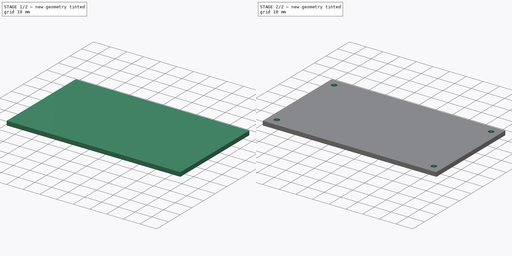
[diagram: build sequence overview — one tinted view per stage of 2, left to right]
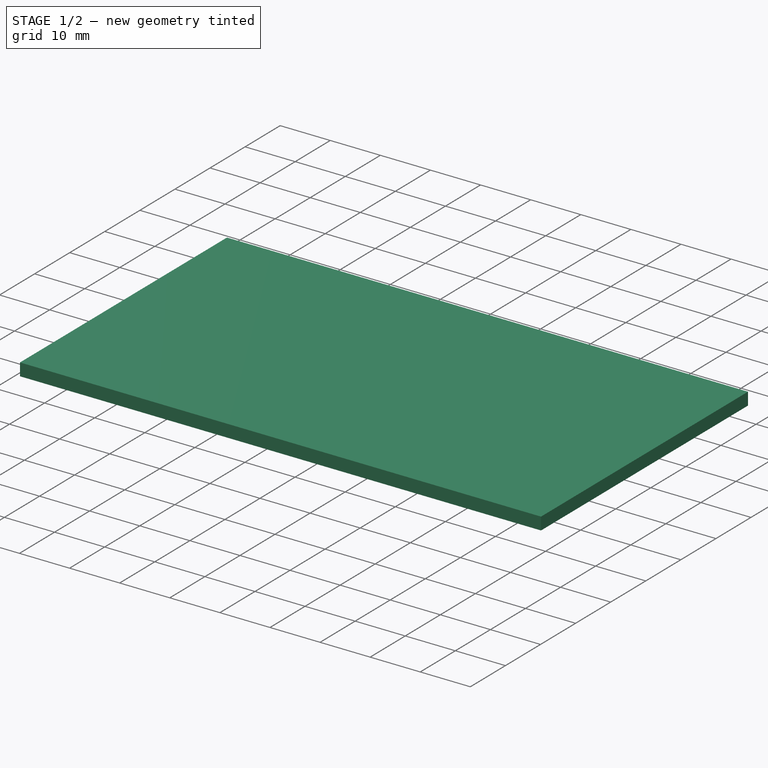
[diagram: stage 1 of 2 — iso view after this stage's code; geometry added in this stage tinted green]
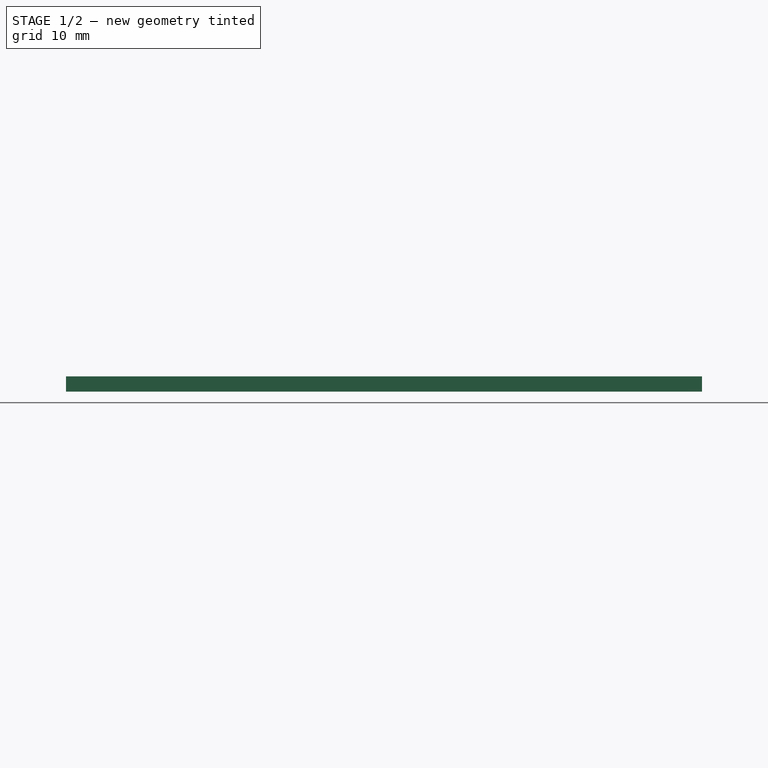
[diagram: stage 1 of 2 — front view after this stage's code; geometry added in this stage tinted green]
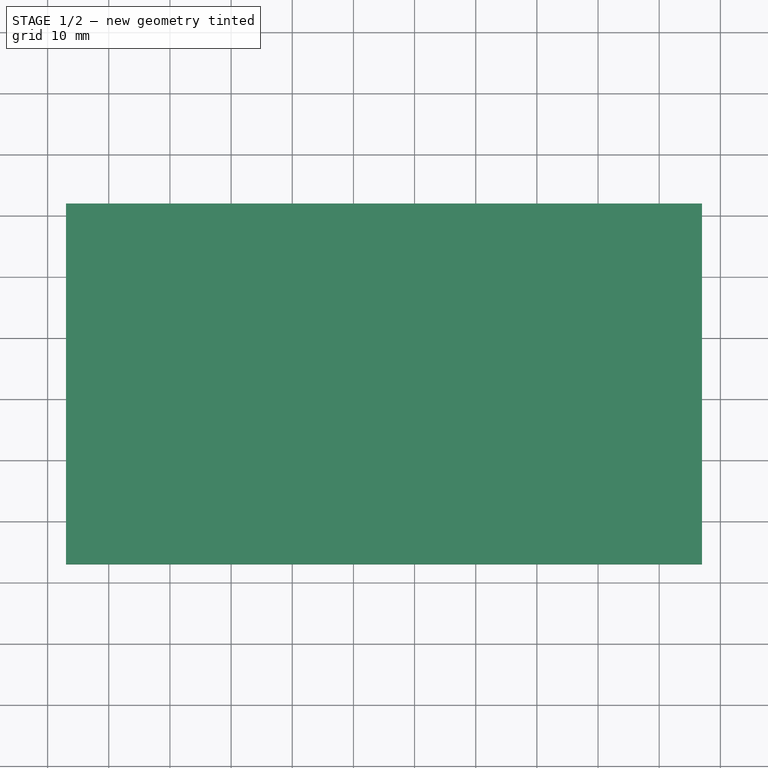
[diagram: stage 1 of 2 — top view after this stage's code; geometry added in this stage tinted green]
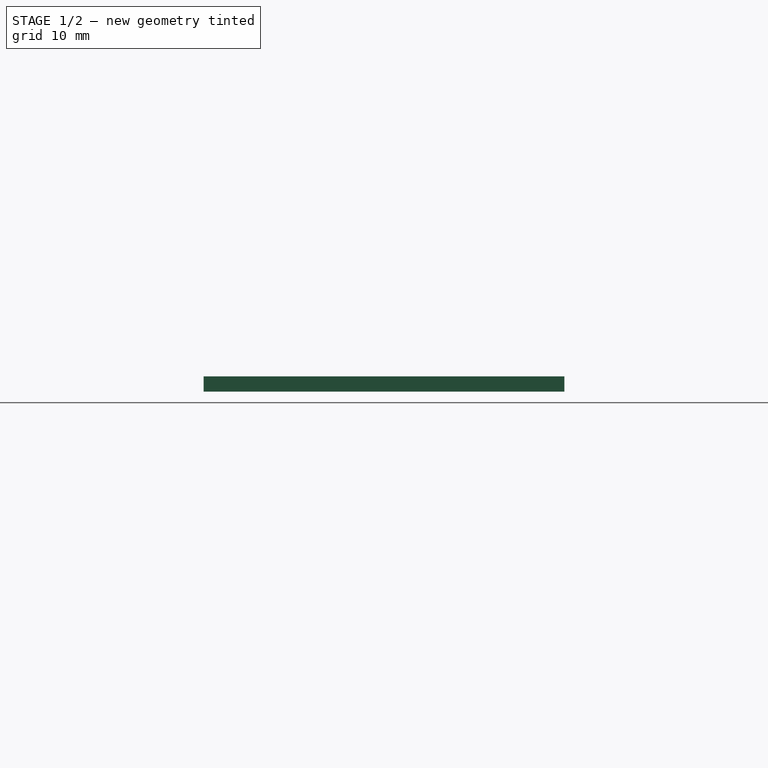
[diagram: stage 1 of 2 — right view after this stage's code; geometry added in this stage tinted green]
FCSTD DOCUMENT  (FreeCAD 0.15R4671 (Git))
Label: insideCover
License: All rights reserved
LicenseURL: http://en.wikipedia.org/wiki/All_rights_reserved
objects: Sketcher::SketchObject×2, PartDesign::Pad×1, PartDesign::Pocket×1
note: 6 computed .brp shape members not serialized (recipe doc carries the construction recipe); baked Part::Feature solids carry a one-line shape summary decoded from their .brp

FEATURE [Sketcher::SketchObject] Sketch002  label="intérieur"
  Placement = pos=(0,0,35) rot=(0,0,1;0rad)
  sketch-geometry (4):
    g0: LineSegment StartX=3 StartY=62 StartZ=0 EndX=107 EndY=62 EndZ=0
    g1: LineSegment StartX=107 StartY=62 StartZ=0 EndX=107 EndY=3 EndZ=0
    g2: LineSegment StartX=107 StartY=3 StartZ=0 EndX=3 EndY=3 EndZ=0
    g3: LineSegment StartX=3 StartY=3 StartZ=0 EndX=3 EndY=62 EndZ=0
  constraints (14):
    c: Coincident(g0,g1)
    c: Coincident(g1,g2)
    c: Coincident(g2,g3)
    c: Coincident(g3,g0)
    c: Horizontal(g0)
    c: Horizontal(g2)
    c: Vertical(g1)
    c: Vertical(g3)
    c: Equal(g0,g2)
    c: Equal(g3,g1)
    c: DistanceX(g-1,g2) = 3
    c: DistanceY(g-1,g2) = 3
    c: Distance(g3) = 59
    c: Distance(g0) = 104
FEATURE [PartDesign::Pad] Pad
  Length = 2.5
  Length2 = 100
  Placement = pos=(0,0,35) rot=(0,0,1;0rad)
  Sketch = -> Sketch002
  Type = 0
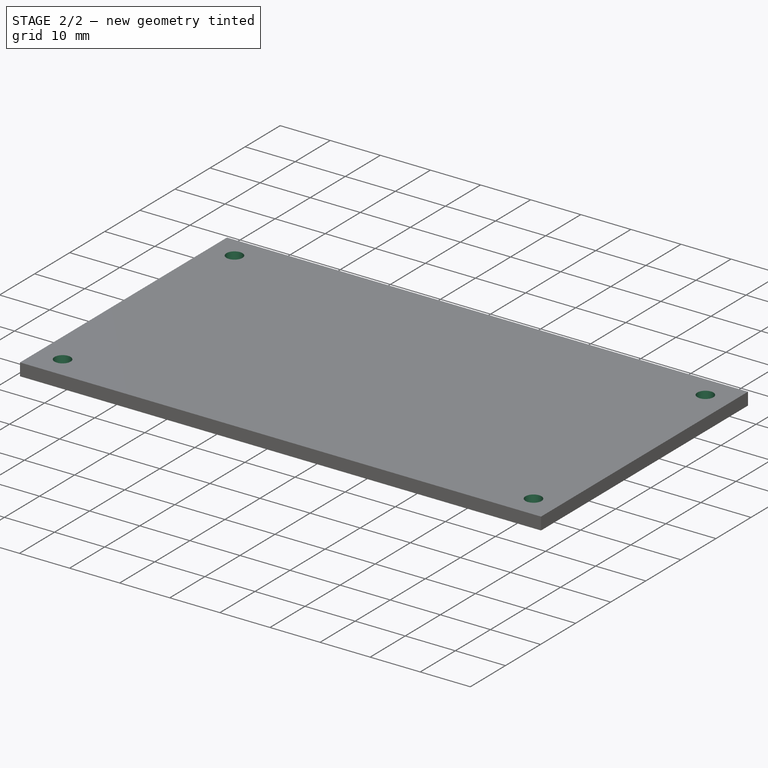
[diagram: stage 2 of 2 — iso view after this stage's code; geometry added in this stage tinted green]
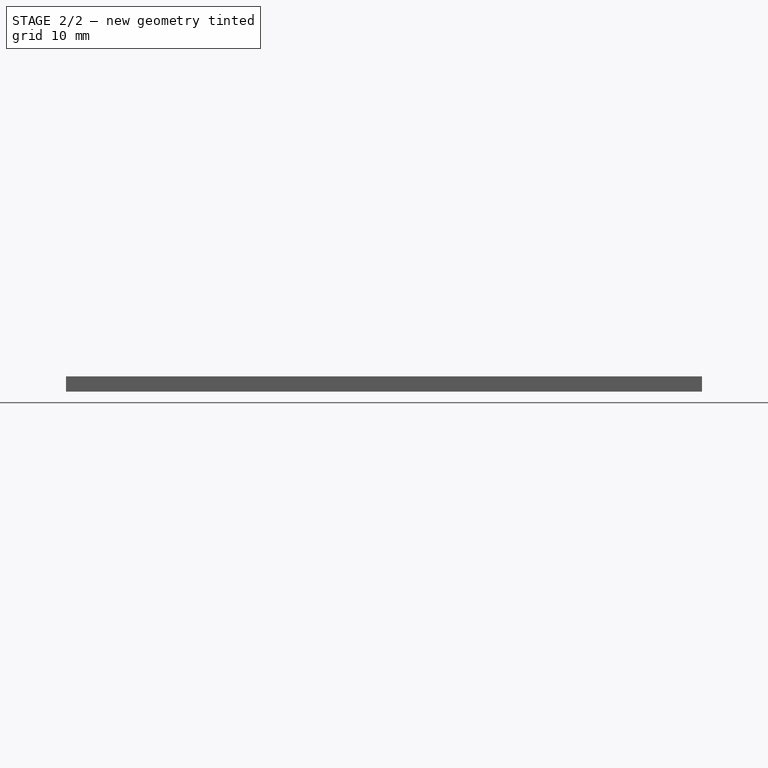
[diagram: stage 2 of 2 — front view after this stage's code; geometry added in this stage tinted green]
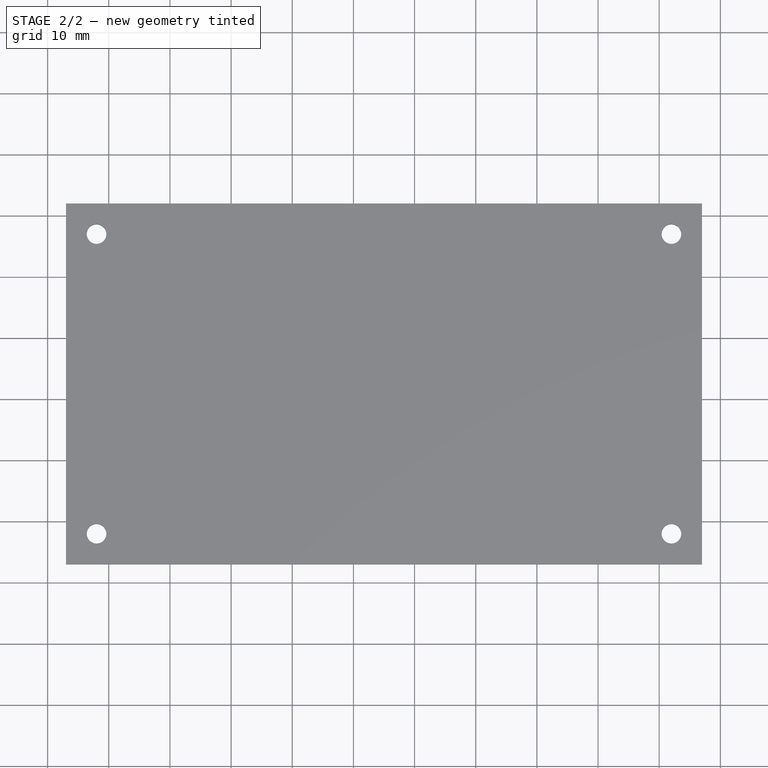
[diagram: stage 2 of 2 — top view after this stage's code; geometry added in this stage tinted green]
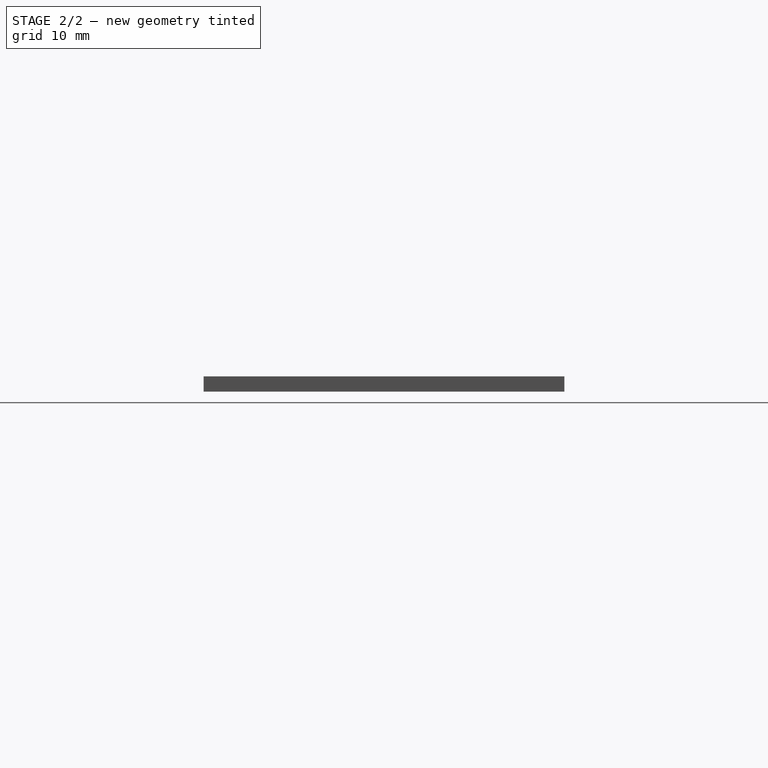
[diagram: stage 2 of 2 — right view after this stage's code; geometry added in this stage tinted green]
FEATURE [Sketcher::SketchObject] Sketch003  label="Trous"
  Placement = pos=(0,0,37.5) rot=(0,0,1;0rad)
  Support = -> Pad [Face6]
  sketch-geometry (4):
    g0: Circle CenterX=8 CenterY=57 CenterZ=0 NormalX=0 NormalY=0 NormalZ=1 Radius=1.6
    g1: Circle CenterX=102 CenterY=57 CenterZ=0 NormalX=0 NormalY=0 NormalZ=1 Radius=1.6
    g2: Circle CenterX=102 CenterY=8 CenterZ=0 NormalX=0 NormalY=0 NormalZ=1 Radius=1.6
    g3: Circle CenterX=8 CenterY=8 CenterZ=0 NormalX=0 NormalY=0 NormalZ=1 Radius=1.6
  constraints (12):
    c: DistanceX(g-1,g0) = 8
    c: DistanceY(g-1,g0) = 57
    c: Radius(g0) = 1.6
    c: Equal(g1,g0)
    c: DistanceX(g-1,g1) = 102
    c: DistanceY(g-1,g1) = 57
    c: Equal(g2,g0)
    c: DistanceY(g-1,g2) = 8
    c: DistanceX(g-1,g2) = 102
    c: Equal(g3,g0)
    c: DistanceX(g-1,g3) = 8
    c: DistanceY(g-1,g3) = 8
FEATURE [PartDesign::Pocket] Pocket002  label="Cavités trous"
  Length = 2.5
  Placement = pos=(0,0,35) rot=(0,0,1;0rad)
  Sketch = -> Sketch003
  Type = 0
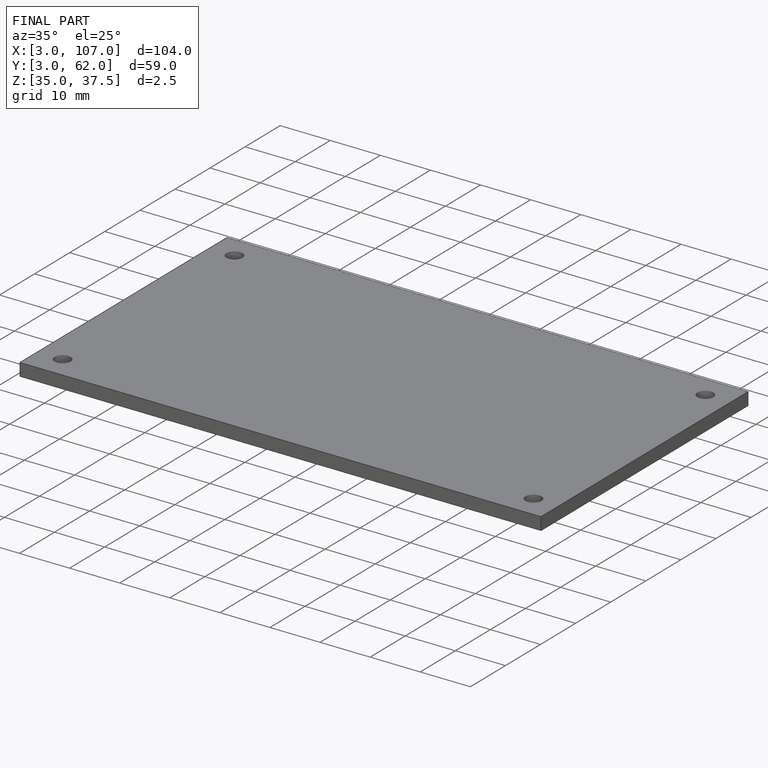
[diagram: finished part — iso view with bounding-box wireframe]
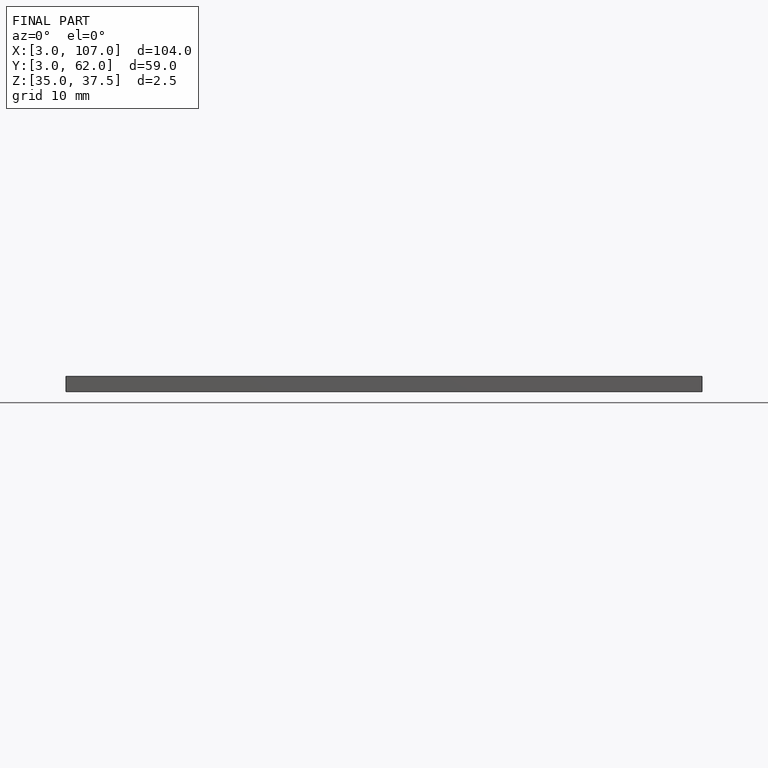
[diagram: finished part — front view with bounding-box wireframe]
